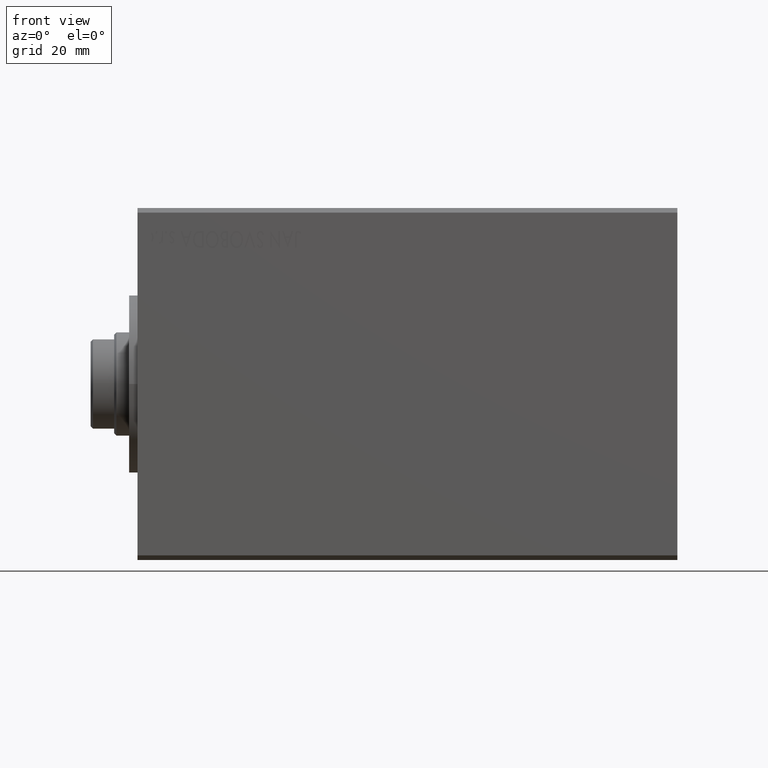
[diagram: clean part render]
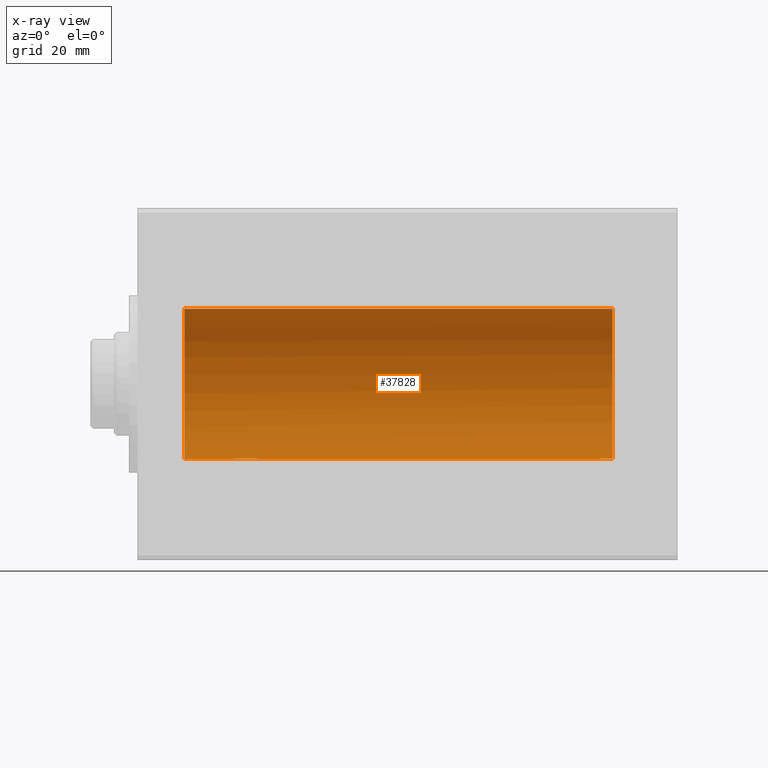
[diagram: x-ray — body ghosted, one internal face saturated and labeled with its STEP entity id]
A machine part, front view, then the same camera in x-ray: the body is ghosted and one INTERNAL B-rep face — a face not visible from any outside direction — is saturated and labeled: STEP entity #37828.
In plain terms, the highlighted cylindrical surface (partial cylindrical patch) has radius 16 mm, axis along (-1, -0, -0).
Its self-contained STEP definition (entity closure, byte-faithful):
#170 = CARTESIAN_POINT ( 'NONE',  ( 101.2000000000000028, 1.786057109949259036, -15.89999999999998970 ) ) ;
#331 = AXIS2_PLACEMENT_3D ( 'NONE', #8744, #5378, #2028 ) ;
#495 = CARTESIAN_POINT ( 'NONE',  ( 25.75000000000000355, 0.1629275007895856497, -16.00000000000000000 ) ) ;
#711 = CARTESIAN_POINT ( 'NONE',  ( 25.75000000000000000, 1.966672454835068530E-15, -16.00000000000000000 ) ) ;
#1135 = CARTESIAN_POINT ( 'NONE',  ( 101.2000000000000028, 1.786057109949259036, -15.89999999999998970 ) ) ;
#1263 = LINE ( 'NONE', #21165, #28523 ) ;
#1874 = CARTESIAN_POINT ( 'NONE',  ( 20.32103554224154607, 0.6416550435731651625, -15.98791951246752241 ) ) ;
#2028 = DIRECTION ( 'NONE',  ( 0.000000000000000000, 0.000000000000000000, 1.000000000000000000 ) ) ;
#2488 = ORIENTED_EDGE ( 'NONE', *, *, #29162, .F. ) ;
#2938 = EDGE_CURVE ( 'NONE', #42405, #32525, #30497, .T. ) ;
#3324 = VERTEX_POINT ( 'NONE', #37010 ) ;
#3328 = CARTESIAN_POINT ( 'NONE',  ( 9.999999999999994671, 0.000000000000000000, 0.000000000000000000 ) ) ;
#3918 = VERTEX_POINT ( 'NONE', #26040 ) ;
#4017 = B_SPLINE_CURVE_WITH_KNOTS ( 'NONE', 3,
 ( #11234, #31072, #14809, #17485, #41334, #10563, #495, #711 ),
 .UNSPECIFIED., .F., .F.,
 ( 4, 2, 2, 4 ),
 ( 0.000000000000000000, 0.0009687575396886391509, 0.001453136309532957046, 0.001937515079377275266 ),
 .UNSPECIFIED. ) ;
#5222 = CARTESIAN_POINT ( 'NONE',  ( 20.36400824168861234, 0.8002234119869107154, -15.98070334047259777 ) ) ;
#5224 = LINE ( 'NONE', #22434, #34075 ) ;
#5378 = DIRECTION ( 'NONE',  ( -1.000000000000000000, -0.000000000000000000, -0.000000000000000000 ) ) ;
#5448 = CARTESIAN_POINT ( 'NONE',  ( 20.70828422114123057, 1.528580496451064752, -15.92742812959714982 ) ) ;
#5861 = CARTESIAN_POINT ( 'NONE',  ( 98.25000000000000000, 1.952197382189107282E-15, -16.00000000000000000 ) ) ;
#6296 = CARTESIAN_POINT ( 'NONE',  ( 98.90894763336741846, 1.786057109949259036, -15.89999999999998970 ) ) ;
#6728 = CARTESIAN_POINT ( 'NONE',  ( 98.70828422114124123, 1.528580496451063198, -15.92742812959714982 ) ) ;
#6987 = EDGE_CURVE ( 'NONE', #8433, #3918, #24739, .T. ) ;
#7283 = CARTESIAN_POINT ( 'NONE',  ( 101.2000000000000028, 0.000000000000000000, 0.000000000000000000 ) ) ;
#7324 = VERTEX_POINT ( 'NONE', #5861 ) ;
#7508 = DIRECTION ( 'NONE',  ( 0.000000000000000000, 0.000000000000000000, 1.000000000000000000 ) ) ;
#7915 = VECTOR ( 'NONE', #26606, 1000.000000000000000 ) ;
#8146 = CARTESIAN_POINT ( 'NONE',  ( 20.25000000000000000, 1.952197298178576320E-15, -16.00000000000000000 ) ) ;
#8433 = VERTEX_POINT ( 'NONE', #8746 ) ;
#8613 = ORIENTED_EDGE ( 'NONE', *, *, #10067, .T. ) ;
#8744 = CARTESIAN_POINT ( 'NONE',  ( 101.2000000000000028, 0.000000000000000000, 0.000000000000000000 ) ) ;
#8746 = CARTESIAN_POINT ( 'NONE',  ( 9.999999999999994671, 0.000000000000000000, 16.00000000000000000 ) ) ;
#9447 = EDGE_CURVE ( 'NONE', #43167, #8433, #1263, .T. ) ;
#9882 = CARTESIAN_POINT ( 'NONE',  ( 98.24999999999997158, 0.1628529246558471366, -15.99999999999999645 ) ) ;
#10067 = EDGE_CURVE ( 'NONE', #3324, #20562, #4017, .T. ) ;
#10170 = CIRCLE ( 'NONE', #32273, 16.00000000000000000 ) ;
#10563 = CARTESIAN_POINT ( 'NONE',  ( 25.73536268302067853, 0.3260974502564771282, -15.99746611559688780 ) ) ;
#11188 = EDGE_CURVE ( 'NONE', #42405, #3918, #13664, .T. ) ;
#11234 = CARTESIAN_POINT ( 'NONE',  ( 25.09105236663257088, 1.786057109949259036, -15.89999999999998970 ) ) ;
#12814 = CARTESIAN_POINT ( 'NONE',  ( 98.25000000000000000, 1.952197382189107282E-15, -16.00000000000000000 ) ) ;
#13326 = CARTESIAN_POINT ( 'NONE',  ( 98.90894763336741846, 1.786057109949259036, -15.89999999999998970 ) ) ;
#13664 = LINE ( 'NONE', #43989, #7915 ) ;
#14051 = DIRECTION ( 'NONE',  ( -1.000000000000000000, -0.000000000000000000, -0.000000000000000000 ) ) ;
#14451 = DIRECTION ( 'NONE',  ( -1.000000000000000000, 0.000000000000000000, 0.000000000000000000 ) ) ;
#14809 = CARTESIAN_POINT ( 'NONE',  ( 25.46669777805105639, 1.258673386848676135, -15.95335904956524864 ) ) ;
#15933 = CARTESIAN_POINT ( 'NONE',  ( 98.54529199024536013, 1.250171241089528706, -15.95169574138015633 ) ) ;
#16130 = ORIENTED_EDGE ( 'NONE', *, *, #9447, .T. ) ;
#16254 = ORIENTED_EDGE ( 'NONE', *, *, #16820, .F. ) ;
#16820 = EDGE_CURVE ( 'NONE', #3324, #32525, #5224, .T. ) ;
#17201 = CARTESIAN_POINT ( 'NONE',  ( 101.2000000000000028, 1.959434878635765131E-15, -16.00000000000000000 ) ) ;
#17485 = CARTESIAN_POINT ( 'NONE',  ( 25.63617786229477957, 0.7997846173174859574, -15.98073294566550473 ) ) ;
#17790 = EDGE_CURVE ( 'NONE', #27918, #42186, #24517, .T. ) ;
#18863 = CARTESIAN_POINT ( 'NONE',  ( 20.54529199024537789, 1.250171241089528928, -15.95169574138015278 ) ) ;
#18865 = DIRECTION ( 'NONE',  ( -1.000000000000000000, -0.000000000000000000, -0.000000000000000000 ) ) ;
#19084 = CARTESIAN_POINT ( 'NONE',  ( 20.90894763336742912, 1.786057109949259036, -15.89999999999998970 ) ) ;
#19387 = VECTOR ( 'NONE', #21214, 1000.000000000000000 ) ;
#20562 = VERTEX_POINT ( 'NONE', #26660 ) ;
#20617 = VECTOR ( 'NONE', #14051, 1000.000000000000000 ) ;
#20980 = LINE ( 'NONE', #17201, #19387 ) ;
#21165 = CARTESIAN_POINT ( 'NONE',  ( 101.2000000000000028, 0.000000000000000000, 16.00000000000000000 ) ) ;
#21212 = AXIS2_PLACEMENT_3D ( 'NONE', #3328, #29909, #33899 ) ;
#21214 = DIRECTION ( 'NONE',  ( -1.000000000000000000, -0.000000000000000000, -0.000000000000000000 ) ) ;
#21603 = DIRECTION ( 'NONE',  ( -1.000000000000000000, -0.000000000000000000, -0.000000000000000000 ) ) ;
#22147 = CYLINDRICAL_SURFACE ( 'NONE', #331, 16.00000000000000000 ) ;
#22209 = CARTESIAN_POINT ( 'NONE',  ( 20.26435230214253380, 0.3237335850403343929, -15.99751506009603652 ) ) ;
#22434 = CARTESIAN_POINT ( 'NONE',  ( 101.2000000000000028, 1.786057109949259036, -15.89999999999998970 ) ) ;
#22845 = CARTESIAN_POINT ( 'NONE',  ( 98.80302300273469029, 1.662044306363389179, -15.91393043707981647 ) ) ;
#22883 = ORIENTED_EDGE ( 'NONE', *, *, #28106, .F. ) ;
#23570 = B_SPLINE_CURVE_WITH_KNOTS ( 'NONE', 3,
 ( #12814, #9882, #36428, #26623, #29962, #37303, #15933, #6728, #22845, #6296 ),
 .UNSPECIFIED., .F., .F.,
 ( 4, 2, 2, 2, 4 ),
 ( 0.001937515079377273965, 0.002421672136522718625, 0.002905829193668163068, 0.003389986250813607511, 0.003874143307959051954 ),
 .UNSPECIFIED. ) ;
#23574 = CARTESIAN_POINT ( 'NONE',  ( 101.2000000000000028, 0.000000000000000000, 16.00000000000000000 ) ) ;
#24517 = LINE ( 'NONE', #170, #20617 ) ;
#24739 = CIRCLE ( 'NONE', #21212, 16.00000000000000000 ) ;
#25406 = ORIENTED_EDGE ( 'NONE', *, *, #11188, .F. ) ;
#26040 = CARTESIAN_POINT ( 'NONE',  ( 9.999999999999994671, 1.959434878635765131E-15, -16.00000000000000000 ) ) ;
#26215 = CARTESIAN_POINT ( 'NONE',  ( 20.47635814035335855, 1.104555034037125516, -15.96255602784426841 ) ) ;
#26606 = DIRECTION ( 'NONE',  ( -1.000000000000000000, -0.000000000000000000, -0.000000000000000000 ) ) ;
#26623 = CARTESIAN_POINT ( 'NONE',  ( 98.32103554224153186, 0.6416550435731656066, -15.98791951246751886 ) ) ;
#26660 = CARTESIAN_POINT ( 'NONE',  ( 25.75000000000000000, 1.966672454835068530E-15, -16.00000000000000000 ) ) ;
#26980 = ORIENTED_EDGE ( 'NONE', *, *, #27710, .T. ) ;
#27710 = EDGE_CURVE ( 'NONE', #7324, #42186, #23570, .T. ) ;
#27918 = VERTEX_POINT ( 'NONE', #1135 ) ;
#28106 = EDGE_CURVE ( 'NONE', #43167, #27918, #10170, .T. ) ;
#28307 = ORIENTED_EDGE ( 'NONE', *, *, #17790, .F. ) ;
#28523 = VECTOR ( 'NONE', #21603, 1000.000000000000000 ) ;
#29162 = EDGE_CURVE ( 'NONE', #7324, #20562, #20980, .T. ) ;
#29909 = DIRECTION ( 'NONE',  ( -1.000000000000000000, 0.000000000000000000, 0.000000000000000000 ) ) ;
#29962 = CARTESIAN_POINT ( 'NONE',  ( 98.36400824168860879, 0.8002234119869107154, -15.98070334047259777 ) ) ;
#30440 = ORIENTED_EDGE ( 'NONE', *, *, #2938, .T. ) ;
#30497 = B_SPLINE_CURVE_WITH_KNOTS ( 'NONE', 3,
 ( #35581, #36021, #22209, #1874, #5222, #26215, #18863, #5448, #35363, #19084 ),
 .UNSPECIFIED., .F., .F.,
 ( 4, 2, 2, 2, 4 ),
 ( 0.001937515079377276567, 0.002421672136522722528, 0.002905829193668168706, 0.003389986250813614450, 0.003874143307959060194 ),
 .UNSPECIFIED. ) ;
#31072 = CARTESIAN_POINT ( 'NONE',  ( 25.30299467954352011, 1.537922561208759253, -15.92787311163533914 ) ) ;
#31765 = CARTESIAN_POINT ( 'NONE',  ( 20.90894763336742912, 1.786057109949259036, -15.89999999999998970 ) ) ;
#32273 = AXIS2_PLACEMENT_3D ( 'NONE', #7283, #14451, #7508 ) ;
#32525 = VERTEX_POINT ( 'NONE', #31765 ) ;
#32610 = FACE_OUTER_BOUND ( 'NONE', #41959, .T. ) ;
#33899 = DIRECTION ( 'NONE',  ( 0.000000000000000000, 0.000000000000000000, 1.000000000000000000 ) ) ;
#34075 = VECTOR ( 'NONE', #18865, 1000.000000000000000 ) ;
#35363 = CARTESIAN_POINT ( 'NONE',  ( 20.80302300273467964, 1.662044306363391177, -15.91393043707981292 ) ) ;
#35581 = CARTESIAN_POINT ( 'NONE',  ( 20.25000000000000000, 1.952197298178576320E-15, -16.00000000000000000 ) ) ;
#36021 = CARTESIAN_POINT ( 'NONE',  ( 20.25000000000000000, 0.1628529246558463039, -16.00000000000000000 ) ) ;
#36428 = CARTESIAN_POINT ( 'NONE',  ( 98.26435230214251249, 0.3237335850403359472, -15.99751506009604007 ) ) ;
#37010 = CARTESIAN_POINT ( 'NONE',  ( 25.09105236663257088, 1.786057109949259036, -15.89999999999998970 ) ) ;
#37303 = CARTESIAN_POINT ( 'NONE',  ( 98.47635814035336921, 1.104555034037125516, -15.96255602784426486 ) ) ;
#37828 = ADVANCED_FACE ( 'NONE', ( #32610 ), #22147, .F. ) ;
#41334 = CARTESIAN_POINT ( 'NONE',  ( 25.67843830749630740, 0.6438297815899759469, -15.98783114994251697 ) ) ;
#41860 = ORIENTED_EDGE ( 'NONE', *, *, #6987, .T. ) ;
#41959 = EDGE_LOOP ( 'NONE', ( #2488, #26980, #28307, #22883, #16130, #41860, #25406, #30440, #16254, #8613 ) ) ;
#42186 = VERTEX_POINT ( 'NONE', #13326 ) ;
#42405 = VERTEX_POINT ( 'NONE', #8146 ) ;
#43167 = VERTEX_POINT ( 'NONE', #23574 ) ;
#43989 = CARTESIAN_POINT ( 'NONE',  ( 101.2000000000000028, 1.959434878635765131E-15, -16.00000000000000000 ) ) ;